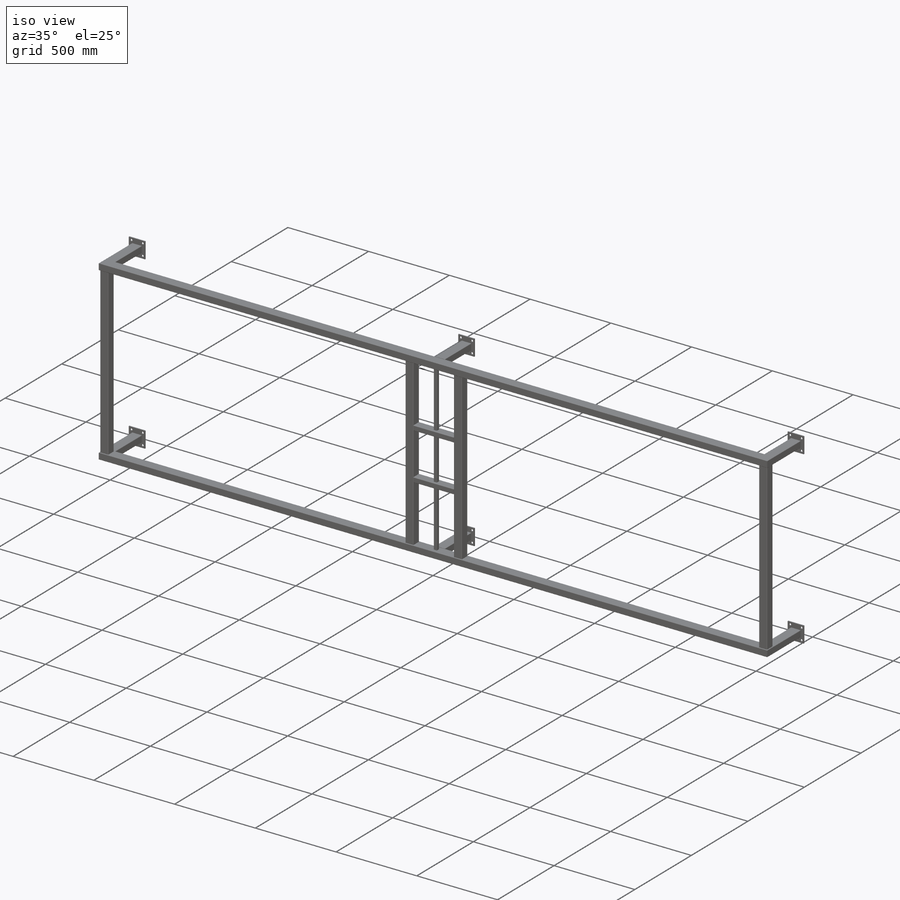
[diagram: iso view]
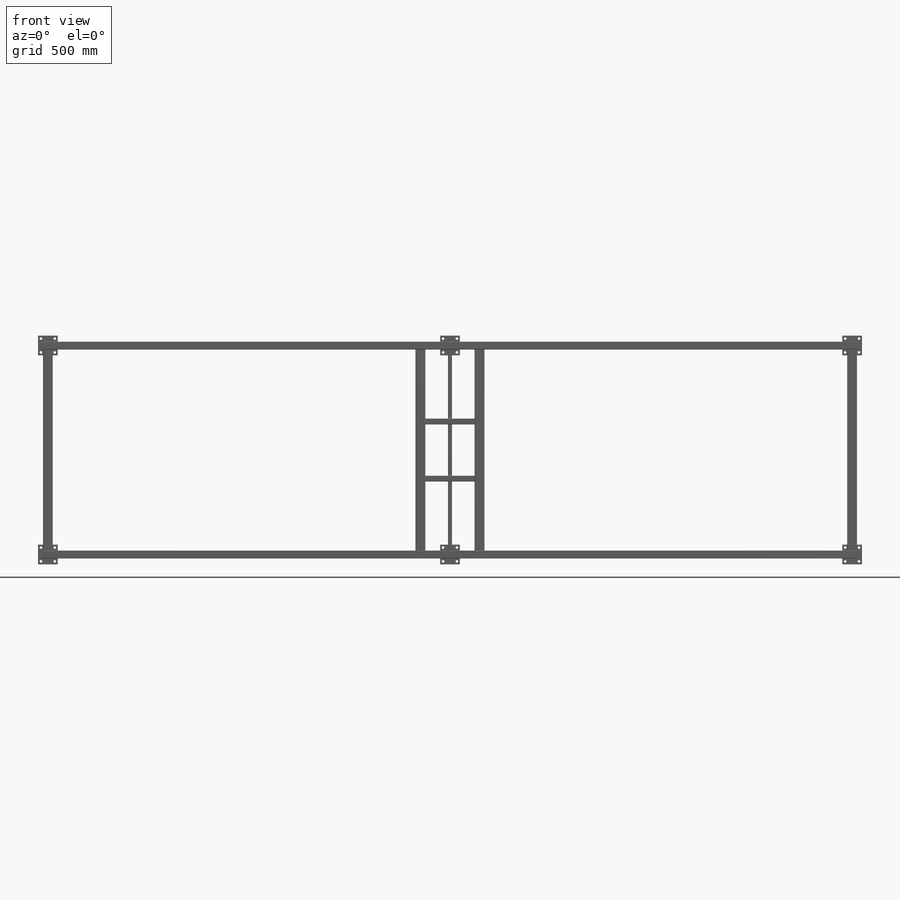
[diagram: front view]
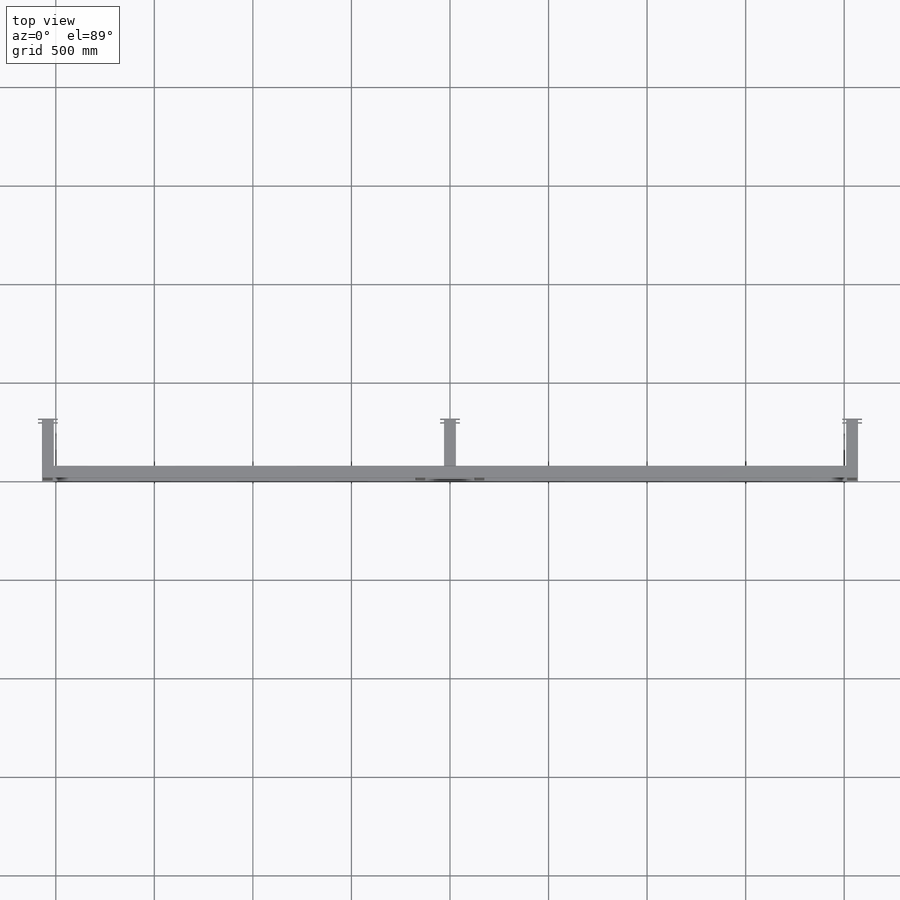
[diagram: top view]
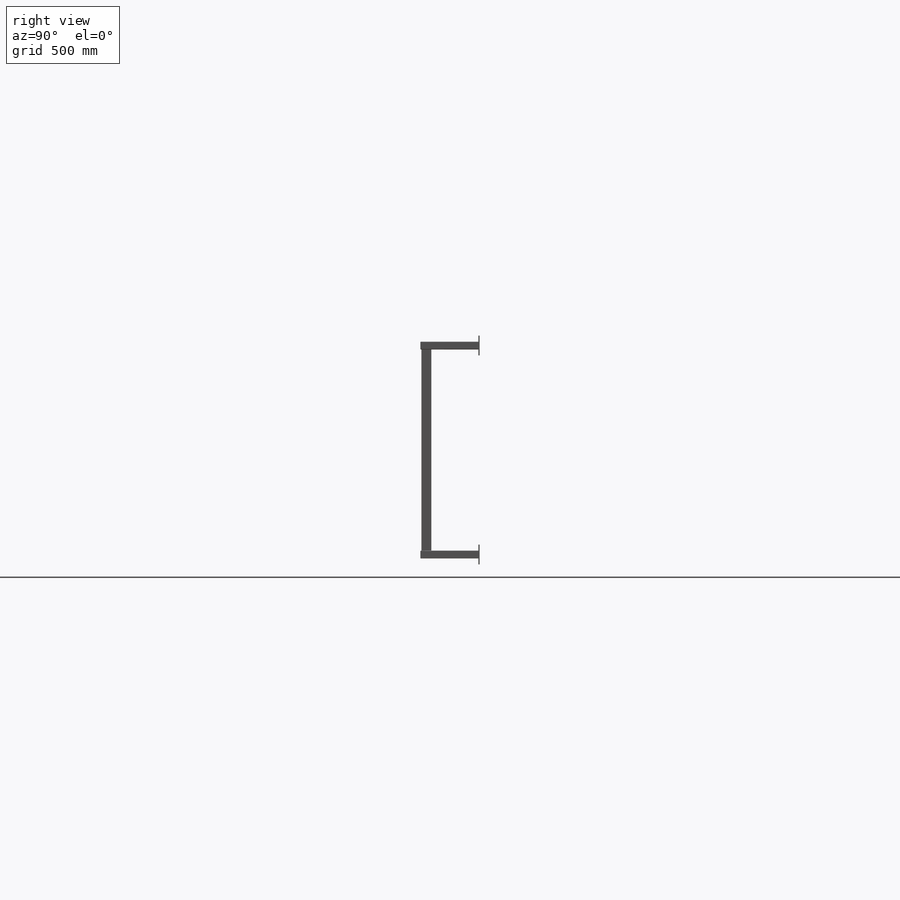
[diagram: right view]
SOLIDWORKS PART (.sldprt)
format: sldprt  version: not decoded by parser v0  size: 1,075,200 bytes
history: native  units: mm
features: sketch x27, plane x9, sheet_metal_op x9, extrude x6, move_body x4, mirror x2, material x1, cut_extrude x1, delete_body x1 + 26 further entries (+10 scaffold rows collapsed)
feature tree (96):
  scaffold x10  (default folders/planes/origin — collapsed)
  material  "1.0037 (S235JR)"
  "Element listy elementów ciętych2"
  "Element listy elementów ciętych3"
  "Element listy elementów ciętych4"
  "Element listy elementów ciętych5"
  "Element listy elementów ciętych6"
  "Element listy elementów ciętych7"
  "Element listy elementów ciętych8"
  "Element listy elementów ciętych9"
  plane  "Płaszczyzna przednia"
  plane  "Płaszczyzna górna"
  plane  "Płaszczyzna prawa"
  "Tabela konfiguracji"
  sketch  "Szkic 3D1"  dims[c1.D1=1100.0mm c1.D2=4140.0mm c2.D1=1100.0mm c2.D2=4140.0mm c2.D3=~1945.944475mm c3.D3=~1002.570434mm c4.D3=~1082.371574mm c5.D3=~1492.701628mm c6.D3=~8.809562mm c7.D3=~907.092293mm c8.D3=~773.134647mm c9.D3=~1193.544282mm c10.D3=~817.884341mm c11.D3=~327.561331mm c12.D3=~10.799284mm c13.D3=~824.006095mm c14.D3=~240.243836mm c15.D3=~10.799284mm c16.D3=~514.545344mm c17.D3=710.8437mm c18.D3=~10.799284mm c19.D3=~550.946524mm c20.D3=~453.359263mm c21.D3=300.0mm c21.D4=~903.009507mm c22.D4=~717.450175mm c23.D4=~648.245683mm c24.D4=~9.848242mm c25.D4=~1010.13979mm c26.D4=~317.817319mm c27.D4=~396.725925mm c28.D4=~31.659478mm c29.D4=~484.889016mm c30.D4=~17.49768mm c31.D4=~451.862957mm c32.D4=~142.766785mm c33.D4=250.0mm c33.D5=290.0mm c33.D6=1100.0mm c34.D6=~3.754629mm]
  plane  "Płaszczyzna1"
  sketch  "Sketch1"  dims[c1.D1=6.35mm c1.D2=6.35mm c1.D3=6.35mm c1.D4=6.35mm c1.D5=6.35mm c1.D6=6.35mm c1.D7=6.35mm c1.D8=6.35mm c2.D1=6.604mm c2.D2=6.604mm c2.D3=6.604mm c2.D4=6.604mm c3.D1=8.0mm c3.D2=~4.762496mm c3.Thickness=1.5mm c3.D4=12.9032mm c3.D5=12.9286mm c3.V_leg=40.0mm c3.H_leg=60.0mm c4.D4=50.3428mm c4.D5=50.8508mm c5.D4=~41.274964mm c5.D5=~41.274964mm]
  sketch  "Słupki"
  plane  "Płaszczyzna4"
  sketch  "Sketch13"  dims[c1.D1=6.35mm c1.D2=6.35mm c1.D3=6.35mm c1.D4=6.35mm c1.D5=6.35mm c1.D6=6.35mm c1.D7=6.35mm c1.D8=6.35mm c2.D1=6.604mm c2.D2=6.604mm c2.D3=6.604mm c2.D4=6.604mm c3.D1=3.0mm c3.Thickness=1.5mm c3.D4=12.9032mm c3.D5=12.9286mm c3.V_leg=50.0mm c3.H_leg=40.0mm c4.D4=50.3428mm c4.D5=50.8508mm c5.D4=~41.274964mm c5.D5=~41.274964mm]
  sketch  "Poprzeczki"
  plane  "Płaszczyzna3"
  sketch  "Sketch12"  dims[c1.D1=6.35mm c1.D2=6.35mm c1.D3=6.35mm c1.D4=6.35mm c1.D5=6.35mm c1.D6=6.35mm c1.D7=6.35mm c1.D8=6.35mm c2.D1=6.604mm c2.D2=6.604mm c2.D3=6.604mm c2.D4=6.604mm c3.D1=8.0mm c3.D2=~4.762496mm c3.Thickness=1.5mm c3.D4=12.9032mm c3.D5=12.9286mm c3.V_leg=30.0mm c3.H_leg=50.0mm c4.D4=50.3428mm c4.D5=50.8508mm c5.D4=~41.274964mm c5.D5=~41.274964mm]
  sketch  "ZIELONY PROFIL"
  plane  "Płaszczyzna5"
  sketch  "Sketch14"  dims[c1.D1=6.35mm c1.D2=6.35mm c1.D3=6.35mm c1.D4=6.35mm c1.D5=6.35mm c1.D6=6.35mm c1.D7=6.35mm c1.D8=6.35mm c2.D1=6.604mm c2.D2=6.604mm c2.D3=6.604mm c2.D4=6.604mm c3.D1=2.0mm c3.Thickness=1.0mm c3.D4=12.9032mm c3.D5=12.9286mm c3.V_leg=20.0mm c3.H_leg=40.0mm c4.D4=50.3428mm c4.D5=50.8508mm c5.D4=~41.274964mm c5.D5=~41.274964mm]
  sketch  "Szkic7"
  cut_extrude  "Wytnij-wyciągnięcie2"  [1 undecoded]
  move_body  "Obiekt-Przenieś/Kopiuj1"
  move_body  "Odległość2"
  extrude  "Obiekt-Przenieś/Kopiuj2"  [1 undecoded]
  "Wspólnie3"
  "Wspólnie4"
  extrude  "Obiekt-Przenieś/Kopiuj3"  [1 undecoded]
  "Wspólnie5"
  extrude  "Obiekt-Przenieś/Kopiuj4"  [1 undecoded]
  move_body  "Odległość3"
  extrude  "Obiekt-Przenieś/Kopiuj7"  [1 undecoded]
  sketch  "Szkic6"  dims[c1.D2=13.0mm c1.D3=13.0mm c1.D1=100.0mm c2.D2=100.0mm c2.D1=100.0mm c2.D3=15.0mm c2.D4=~8.852614mm c3.D1=1.0mm c3.D2=0.5 c3.D3=0.0mm]
  sheet_metal_op  "Odgięcie bazowe1"
  extrude  "Obiekt-Przenieś/Kopiuj5"  [1 undecoded]
  extrude  "Obiekt-Przenieś/Kopiuj6"  [1 undecoded]
  move_body  "Odległość4"
  mirror  "Lustro górna"
  mirror  "Lustro prawa"
  sheet_metal_op  "Przytnij/Wydłuż3"
  plane  "Płaszczyzna6"
  sketch  "Szkic rozłożenia uchwytów 6szt"  dims[D1=120.0mm D2=~51.94069mm]
  plane  "Płaszczyzna7"
  delete_body  "Obiekt-Usuń1"
  sketch  "Linie zgięcia1"
  sketch  "Ramka-graniczna1"
  sheet_metal_op  "Arkusz blachy(25)"
  "Rozłożony model(25)"
  sketch  "Linie zgięcia2"
  sketch  "Ramka-graniczna2"
  "Transformacja szkicu1"
  sheet_metal_op  "Arkusz blachy(26)"
  "Rozłożony model(26)"
  sketch  "Linie zgięcia3"
  sketch  "Ramka-graniczna3"
  "Transformacja szkicu2"
  sheet_metal_op  "Arkusz blachy(27)"
  "Rozłożony model(27)"
  sketch  "Linie zgięcia4"
  sketch  "Ramka-graniczna4"
  "Transformacja szkicu3"
  sheet_metal_op  "Arkusz blachy(28)"
  "Rozłożony model(28)"
  sketch  "Linie zgięcia5"
  sketch  "Ramka-graniczna5"
  "Transformacja szkicu4"
  sheet_metal_op  "Arkusz blachy(29)"
  "Rozłożony model(29)"
  sketch  "Linie zgięcia6"
  sketch  "Ramka-graniczna6"
  "Transformacja szkicu5"
  sheet_metal_op  "Arkusz blachy(30)"
  "Rozłożony model(30)"
  sketch  "Linie zgięcia7"
  sketch  "Ramka-graniczna7"
  "Transformacja szkicu6"
  sheet_metal_op  "Arkusz blachy(39)"
  "Rozłożony model(26)"
  sketch  "Linie zgięcia8"
  sketch  "Ramka-graniczna8"
  "Transformacja szkicu7"
decode coverage: 7 of 50 modeling features carry decoded parameters; 26 rows unclassified (native names shown)
note: ~ marks probable driven/reference dimensions
note: 7 parameter values undecoded
summary: no parameter record found for 7 features
note: suppression state not decoded; provenance and decode notes live in map.json
